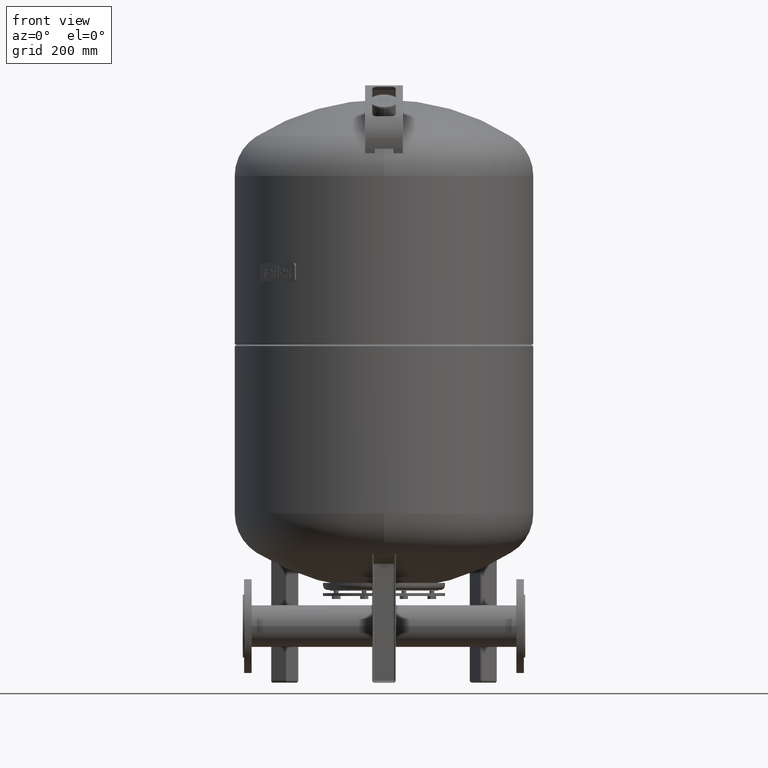
[diagram: clean part render]
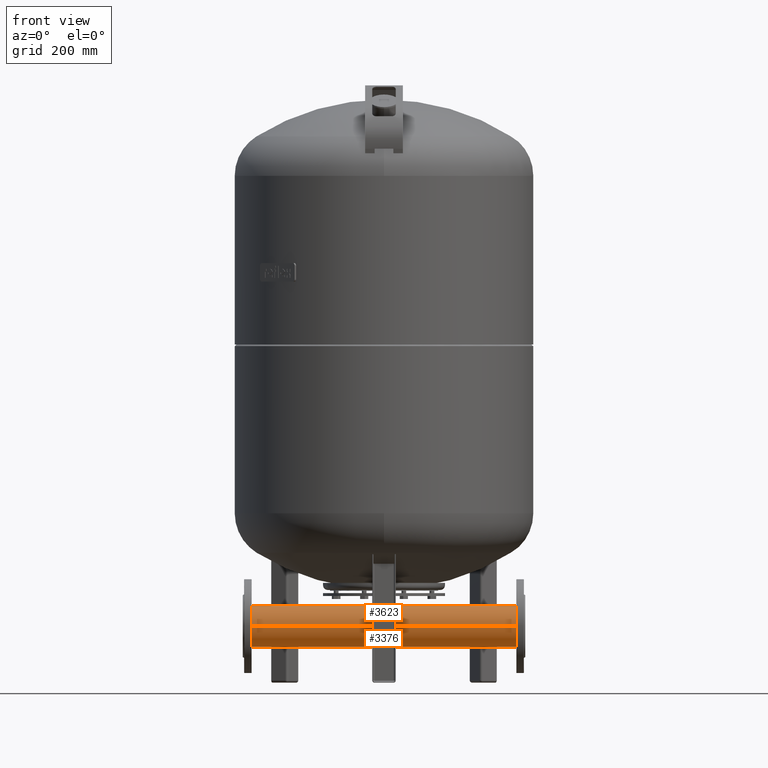
[diagram: same view with one multi-face feature highlighted, each face labeled with its STEP entity id]
A machine part, front view. The highlighted faces form ONE feature: a constant-radius fillet chain: 2 tangent blend faces with common blend radius 44.45 mm. The faces share edges in the B-rep.
Their STEP definitions:
[1] entity #3623 (Cylinder):
#3340=CARTESIAN_POINT('',(-290.0,-44.450000000000003,120.000000000000010));
#3341=VERTEX_POINT('',#3340);
#3342=CARTESIAN_POINT('',(290.0,-44.450000000000003,120.000000000000010));
#3343=VERTEX_POINT('',#3342);
#3344=CARTESIAN_POINT('',(-290.0,-44.450000000000003,120.000000000000010));
#3345=DIRECTION('',(1.0,0.0,0.0));
#3346=VECTOR('',#3345,580.0);
#3347=LINE('',#3344,#3346);
#3348=EDGE_CURVE('',#3341,#3343,#3347,.T.);
#3350=CARTESIAN_POINT('',(-290.0,44.450000000000003,120.000000000000010));
#3351=VERTEX_POINT('',#3350);
#3359=CARTESIAN_POINT('',(290.0,44.450000000000003,120.000000000000010));
#3360=VERTEX_POINT('',#3359);
#3361=CARTESIAN_POINT('',(-290.0,44.450000000000003,120.000000000000010));
#3362=DIRECTION('',(1.0,0.0,0.0));
#3363=VECTOR('',#3362,580.0);
#3364=LINE('',#3361,#3363);
#3365=EDGE_CURVE('',#3351,#3360,#3364,.T.);
#3384=CARTESIAN_POINT('',(21.199999999999999,-2.609024E-015,164.450000000000020));
#3385=VERTEX_POINT('',#3384);
#3401=CARTESIAN_POINT('',(-21.199999999999999,6.429319E-018,164.450000000000020));
#3402=VERTEX_POINT('',#3401);
#3409=CARTESIAN_POINT('',(-9.255268769733188,-19.073017590302840,160.150000000000010));
#3410=VERTEX_POINT('',#3409);
#3411=CARTESIAN_POINT('',(-21.199999999999999,6.429319E-018,164.450000000000020));
#3412=CARTESIAN_POINT('',(-21.199999999999999,-0.676949430575640,164.450000000000020));
#3413=CARTESIAN_POINT('',(-21.167441153364571,-1.363819374060042,164.434441295891250));
#3414=CARTESIAN_POINT('',(-21.033125230235740,-2.743758610999208,164.370613757842390));
#3415=CARTESIAN_POINT('',(-20.931373956715078,-3.436828503930000,164.322345673069610));
#3416=CARTESIAN_POINT('',(-20.657710105999641,-4.815933871447621,164.193765364275180));
#3417=CARTESIAN_POINT('',(-20.485784944487087,-5.502065052499702,164.113449457189120));
#3418=CARTESIAN_POINT('',(-20.073582200570151,-6.855027517860495,163.923544262539620));
#3419=CARTESIAN_POINT('',(-19.833309010748476,-7.521861332932393,163.813963470886110));
#3420=CARTESIAN_POINT('',(-19.016658113098707,-9.476332434212416,163.448346265430270));
#3421=CARTESIAN_POINT('',(-18.342273985098394,-10.719858566093745,163.154404263451740));
#3422=CARTESIAN_POINT('',(-16.793357100909880,-13.012975824006595,162.519177264415280));
#3423=CARTESIAN_POINT('',(-15.918703409469408,-14.062624112840208,162.178393610927740));
#3424=CARTESIAN_POINT('',(-14.060577745397850,-15.920749776911766,161.512748661790540));
#3425=CARTESIAN_POINT('',(-13.009923410229625,-16.795687714215170,161.163302287794290));
#3426=CARTESIAN_POINT('',(-11.039126407685908,-18.126426319528782,160.590669704612370));
#3427=CARTESIAN_POINT('',(-10.165351092310249,-18.631395992768311,160.359789701071830));
#3428=CARTESIAN_POINT('',(-9.255268769733188,-19.073017590302840,160.150000000000010));
#3429=B_SPLINE_CURVE_WITH_KNOTS('',3,(#3411,#3412,#3413,#3414,#3415,#3416,#3417,#3418,#3419,#3420,#3421,#3422,#3423,#3424,#3425,#3426,#3427,#3428),.UNSPECIFIED.,.F.,.U.,(4,2,2,2,2,2,2,2,4),(32.529397532071549,34.560245823798468,36.591094115525394,38.621942407252320,40.652790698979246,44.714487282433097,48.776183865886949,52.846836665450986,55.774488578327329),.UNSPECIFIED.);
#3430=EDGE_CURVE('',#3402,#3410,#3429,.T.);
#3432=CARTESIAN_POINT('',(9.255268769733188,-19.073017590302840,160.150000000000010));
#3433=VERTEX_POINT('',#3432);
#3434=CARTESIAN_POINT('',(-9.255268769733188,-19.073017590302840,160.150000000000010));
#3435=CARTESIAN_POINT('',(-8.899958462148710,-19.245433537479592,160.068094834536710));
#3436=CARTESIAN_POINT('',(-8.539141416050697,-19.408244156430985,159.989391932066780));
#3437=CARTESIAN_POINT('',(-7.522963997265386,-19.832861277534455,159.781299957834900));
#3438=CARTESIAN_POINT('',(-6.856892646496809,-20.072923736784052,159.660229777031300));
#3439=CARTESIAN_POINT('',(-5.505144921250054,-20.484936502306653,159.448998337180430));
#3440=CARTESIAN_POINT('',(-4.819463989948445,-20.656882590118698,159.358858011262810));
#3441=CARTESIAN_POINT('',(-3.440650489217258,-20.930741876675224,159.213907570769040));
#3442=CARTESIAN_POINT('',(-2.747414288529246,-21.032667640938769,159.159101642628630));
#3443=CARTESIAN_POINT('',(-1.366310527992796,-21.167299990967429,159.086490769123690));
#3444=CARTESIAN_POINT('',(-0.678442133260674,-21.199999999999999,159.068689509631640));
#3445=CARTESIAN_POINT('',(0.678442133260674,-21.199999999999999,159.068689509631640));
#3446=CARTESIAN_POINT('',(1.366310527992797,-21.167299990967429,159.086490769123690));
#3447=CARTESIAN_POINT('',(2.747414288529245,-21.032667640938769,159.159101642628630));
#3448=CARTESIAN_POINT('',(3.440650489217255,-20.930741876675235,159.213907570769040));
#3449=CARTESIAN_POINT('',(4.819463989948442,-20.656882590118705,159.358858011262810));
#3450=CARTESIAN_POINT('',(5.505144921250053,-20.484936502306656,159.448998337180430));
#3451=CARTESIAN_POINT('',(6.856892646496812,-20.072923736784052,159.660229777031300));
#3452=CARTESIAN_POINT('',(7.522963997265387,-19.832861277534448,159.781299957834900));
#3453=CARTESIAN_POINT('',(8.539141416050697,-19.408244156430982,159.989391932066780));
#3454=CARTESIAN_POINT('',(8.899958462148712,-19.245433537479592,160.068094834536710));
#3455=CARTESIAN_POINT('',(9.255268769733188,-19.073017590302840,160.150000000000010));
#3456=B_SPLINE_CURVE_WITH_KNOTS('',3,(#3434,#3435,#3436,#3437,#3438,#3439,#3440,#3441,#3442,#3443,#3444,#3445,#3446,#3447,#3448,#3449,#3450,#3451,#3452,#3453,#3454,#3455),.UNSPECIFIED.,.F.,.U.,(4,2,2,2,2,2,2,2,2,2,4),(55.774488578327329,56.917489465015024,58.952815864797046,60.988142264579061,63.023468664361076,65.058795064143098,67.094121463925120,69.129447863707128,71.164774263489150,73.200100663271172,74.343101549958860),.UNSPECIFIED.);
#3457=EDGE_CURVE('',#3410,#3433,#3456,.T.);
#3459=CARTESIAN_POINT('',(9.255268769733188,-19.073017590302840,160.150000000000010));
#3460=CARTESIAN_POINT('',(10.165351092310251,-18.631395992768311,160.359789701071830));
#3461=CARTESIAN_POINT('',(11.039126407685902,-18.126426319528782,160.590669704612400));
#3462=CARTESIAN_POINT('',(13.009923410229620,-16.795687714215170,161.163302287794270));
#3463=CARTESIAN_POINT('',(14.060577745397845,-15.920749776911768,161.512748661790540));
#3464=CARTESIAN_POINT('',(15.918703409469403,-14.062624112840211,162.178393610927740));
#3465=CARTESIAN_POINT('',(16.793357100909873,-13.012975824006597,162.519177264415280));
#3466=CARTESIAN_POINT('',(18.342273985098387,-10.719858566093748,163.154404263451740));
#3467=CARTESIAN_POINT('',(19.016658113098707,-9.476332434212424,163.448346265430270));
#3468=CARTESIAN_POINT('',(19.833309010748476,-7.521861332932405,163.813963470886110));
#3469=CARTESIAN_POINT('',(20.073582200570147,-6.855027517860505,163.923544262539620));
#3470=CARTESIAN_POINT('',(20.485784944487090,-5.502065052499712,164.113449457189120));
#3471=CARTESIAN_POINT('',(20.657710105999641,-4.815933871447632,164.193765364275180));
#3472=CARTESIAN_POINT('',(20.931373956715078,-3.436828503930013,164.322345673069610));
#3473=CARTESIAN_POINT('',(21.033125230235740,-2.743758610999221,164.370613757842390));
#3474=CARTESIAN_POINT('',(21.167441153364571,-1.363819374060054,164.434441295891250));
#3475=CARTESIAN_POINT('',(21.199999999999999,-0.676949430575645,164.450000000000020));
#3476=CARTESIAN_POINT('',(21.199999999999999,-2.609024E-015,164.450000000000020));
#3477=B_SPLINE_CURVE_WITH_KNOTS('',3,(#3459,#3460,#3461,#3462,#3463,#3464,#3465,#3466,#3467,#3468,#3469,#3470,#3471,#3472,#3473,#3474,#3475,#3476),.UNSPECIFIED.,.F.,.U.,(4,2,2,2,2,2,2,2,4),(74.343101549958860,77.270753462835202,81.341406262399232,85.403102845853084,89.464799429306936,91.495647721033862,93.526496012760788,95.557344304487714,97.588192596214640),.UNSPECIFIED.);
#3478=EDGE_CURVE('',#3433,#3385,#3477,.T.);
#3489=CARTESIAN_POINT('',(9.255268769733188,19.073017590302840,160.150000000000010));
#3490=VERTEX_POINT('',#3489);
#3491=CARTESIAN_POINT('',(21.199999999999999,-2.609024E-015,164.450000000000020));
#3492=CARTESIAN_POINT('',(21.199999999999999,0.676949430575639,164.450000000000020));
#3493=CARTESIAN_POINT('',(21.167441153364571,1.363819374060044,164.434441295891250));
#3494=CARTESIAN_POINT('',(21.033125230235740,2.743758610999212,164.370613757842390));
#3495=CARTESIAN_POINT('',(20.931373956715078,3.436828503930004,164.322345673069610));
#3496=CARTESIAN_POINT('',(20.657710105999641,4.815933871447623,164.193765364275210));
#3497=CARTESIAN_POINT('',(20.485784944487090,5.502065052499703,164.113449457189120));
#3498=CARTESIAN_POINT('',(20.073582200570147,6.855027517860497,163.923544262539620));
#3499=CARTESIAN_POINT('',(19.833309010748476,7.521861332932395,163.813963470886110));
#3500=CARTESIAN_POINT('',(19.016658113098707,9.476332434212416,163.448346265430270));
#3501=CARTESIAN_POINT('',(18.342273985098394,10.719858566093745,163.154404263451740));
#3502=CARTESIAN_POINT('',(16.793357100909880,13.012975824006592,162.519177264415280));
#3503=CARTESIAN_POINT('',(15.918703409469408,14.062624112840204,162.178393610927740));
#3504=CARTESIAN_POINT('',(14.060577745397849,15.920749776911762,161.512748661790540));
#3505=CARTESIAN_POINT('',(13.009923410229620,16.795687714215166,161.163302287794290));
#3506=CARTESIAN_POINT('',(11.039126407685902,18.126426319528779,160.590669704612400));
#3507=CARTESIAN_POINT('',(10.165351092310248,18.631395992768311,160.359789701071800));
#3508=CARTESIAN_POINT('',(9.255268769733188,19.073017590302840,160.150000000000010));
#3509=B_SPLINE_CURVE_WITH_KNOTS('',3,(#3491,#3492,#3493,#3494,#3495,#3496,#3497,#3498,#3499,#3500,#3501,#3502,#3503,#3504,#3505,#3506,#3507,#3508),.UNSPECIFIED.,.F.,.U.,(4,2,2,2,2,2,2,2,4),(97.588192596214640,99.619040887941566,101.649889179668490,103.680737471395420,105.711585763122340,109.773282346576200,113.834978930030050,117.905631729594090,120.833283642470420),.UNSPECIFIED.);
#3510=EDGE_CURVE('',#3385,#3490,#3509,.T.);
#3512=CARTESIAN_POINT('',(-9.255268769733188,19.073017590302840,160.150000000000010));
#3513=VERTEX_POINT('',#3512);
#3514=CARTESIAN_POINT('',(9.255268769733188,19.073017590302840,160.150000000000010));
#3515=CARTESIAN_POINT('',(8.899958462148710,19.245433537479592,160.068094834536710));
#3516=CARTESIAN_POINT('',(8.539141416050697,19.408244156430982,159.989391932066780));
#3517=CARTESIAN_POINT('',(7.522963997265384,19.832861277534448,159.781299957834900));
#3518=CARTESIAN_POINT('',(6.856892646496812,20.072923736784048,159.660229777031300));
#3519=CARTESIAN_POINT('',(5.505144921250057,20.484936502306649,159.448998337180430));
#3520=CARTESIAN_POINT('',(4.819463989948449,20.656882590118698,159.358858011262810));
#3521=CARTESIAN_POINT('',(3.440650489217257,20.930741876675224,159.213907570769040));
#3522=CARTESIAN_POINT('',(2.747414288529238,21.032667640938772,159.159101642628630));
#3523=CARTESIAN_POINT('',(1.366310527992786,21.167299990967432,159.086490769123690));
#3524=CARTESIAN_POINT('',(0.678442133260669,21.199999999999999,159.068689509631640));
#3525=CARTESIAN_POINT('',(0.0,21.199999999999999,159.068689509631640));
#3526=CARTESIAN_POINT('',(-0.678442133260673,21.199999999999999,159.068689509631640));
#3527=CARTESIAN_POINT('',(-1.366310527992793,21.167299990967429,159.086490769123690));
#3528=CARTESIAN_POINT('',(-2.747414288529243,21.032667640938769,159.159101642628630));
#3529=CARTESIAN_POINT('',(-3.440650489217256,20.930741876675228,159.213907570769040));
#3530=CARTESIAN_POINT('',(-4.819463989948446,20.656882590118698,159.358858011262810));
#3531=CARTESIAN_POINT('',(-5.505144921250056,20.484936502306653,159.448998337180430));
#3532=CARTESIAN_POINT('',(-6.856892646496811,20.072923736784052,159.660229777031300));
#3533=CARTESIAN_POINT('',(-7.522963997265387,19.832861277534455,159.781299957834900));
#3534=CARTESIAN_POINT('',(-8.539141416050697,19.408244156430989,159.989391932066780));
#3535=CARTESIAN_POINT('',(-8.899958462148710,19.245433537479592,160.068094834536710));
#3536=CARTESIAN_POINT('',(-9.255268769733188,19.073017590302840,160.150000000000010));
#3537=B_SPLINE_CURVE_WITH_KNOTS('',3,(#3514,#3515,#3516,#3517,#3518,#3519,#3520,#3521,#3522,#3523,#3524,#3525,#3526,#3527,#3528,#3529,#3530,#3531,#3532,#3533,#3534,#3535,#3536),.UNSPECIFIED.,.F.,.U.,(4,2,2,2,2,3,2,2,2,2,4),(120.833283642470420,121.976284529158120,124.011610928940140,126.046937328722150,128.082263728504190,130.117590128286200,132.152916528068200,134.188242927850240,136.223569327632250,138.258895727414260,139.401896614101960),.UNSPECIFIED.);
#3538=EDGE_CURVE('',#3490,#3513,#3537,.T.);
#3540=CARTESIAN_POINT('',(-9.255268769733188,19.073017590302840,160.150000000000010));
#3541=CARTESIAN_POINT('',(-10.165351092310251,18.631395992768308,160.359789701071830));
#3542=CARTESIAN_POINT('',(-11.039126407685909,18.126426319528779,160.590669704612370));
#3543=CARTESIAN_POINT('',(-13.009923410229625,16.795687714215170,161.163302287794290));
#3544=CARTESIAN_POINT('',(-14.060577745397850,15.920749776911766,161.512748661790540));
#3545=CARTESIAN_POINT('',(-15.918703409469408,14.062624112840208,162.178393610927740));
#3546=CARTESIAN_POINT('',(-16.793357100909873,13.012975824006597,162.519177264415280));
#3547=CARTESIAN_POINT('',(-18.342273985098387,10.719858566093750,163.154404263451740));
#3548=CARTESIAN_POINT('',(-19.016658113098707,9.476332434212422,163.448346265430270));
#3549=CARTESIAN_POINT('',(-19.833309010748476,7.521861332932403,163.813963470886110));
#3550=CARTESIAN_POINT('',(-20.073582200570147,6.855027517860504,163.923544262539620));
#3551=CARTESIAN_POINT('',(-20.485784944487090,5.502065052499710,164.113449457189120));
#3552=CARTESIAN_POINT('',(-20.657710105999641,4.815933871447630,164.193765364275180));
#3553=CARTESIAN_POINT('',(-20.931373956715078,3.436828503930011,164.322345673069610));
#3554=CARTESIAN_POINT('',(-21.033125230235740,2.743758610999219,164.370613757842390));
#3555=CARTESIAN_POINT('',(-21.167441153364571,1.363819374060052,164.434441295891250));
#3556=CARTESIAN_POINT('',(-21.199999999999999,0.676949430575642,164.450000000000020));
#3557=CARTESIAN_POINT('',(-21.199999999999999,6.429319E-018,164.450000000000020));
#3558=B_SPLINE_CURVE_WITH_KNOTS('',3,(#3540,#3541,#3542,#3543,#3544,#3545,#3546,#3547,#3548,#3549,#3550,#3551,#3552,#3553,#3554,#3555,#3556,#3557),.UNSPECIFIED.,.F.,.U.,(4,2,2,2,2,2,2,2,4),(9.284306485815769,12.211958398692106,16.282611198256141,20.344307781709993,24.406004365163845,26.436852656890771,28.467700948617697,30.498549240344623,32.529397532071549),.UNSPECIFIED.);
#3559=EDGE_CURVE('',#3513,#3402,#3558,.T.);
#3587=CARTESIAN_POINT('',(290.0,0.0,120.000000000000010));
#3588=DIRECTION('',(-1.0,0.0,0.0));
#3589=DIRECTION('',(0.0,-1.0,0.0));
#3590=AXIS2_PLACEMENT_3D('',#3587,#3588,#3589);
#3591=CIRCLE('',#3590,44.450000000000003);
#3592=EDGE_CURVE('',#3343,#3360,#3591,.T.);
#3598=CARTESIAN_POINT('',(-247.500000000000030,0.0,120.000000000000010));
#3599=DIRECTION('',(-1.0,0.0,0.0));
#3600=DIRECTION('',(0.0,-1.0,0.0));
#3601=AXIS2_PLACEMENT_3D('',#3598,#3599,#3600);
#3602=CYLINDRICAL_SURFACE('',#3601,44.450000000000003);
#3603=ORIENTED_EDGE('',*,*,#3348,.T.);
#3604=ORIENTED_EDGE('',*,*,#3592,.T.);
#3605=ORIENTED_EDGE('',*,*,#3365,.F.);
#3606=CARTESIAN_POINT('',(-290.0,0.0,120.000000000000010));
#3607=DIRECTION('',(-1.0,0.0,0.0));
#3608=DIRECTION('',(0.0,-1.0,0.0));
#3609=AXIS2_PLACEMENT_3D('',#3606,#3607,#3608);
#3610=CIRCLE('',#3609,44.450000000000003);
#3611=EDGE_CURVE('',#3341,#3351,#3610,.T.);
#3612=ORIENTED_EDGE('',*,*,#3611,.F.);
#3613=EDGE_LOOP('',(#3603,#3604,#3605,#3612));
#3614=FACE_OUTER_BOUND('',#3613,.T.);
#3615=ORIENTED_EDGE('',*,*,#3559,.F.);
#3616=ORIENTED_EDGE('',*,*,#3538,.F.);
#3617=ORIENTED_EDGE('',*,*,#3510,.F.);
#3618=ORIENTED_EDGE('',*,*,#3478,.F.);
#3619=ORIENTED_EDGE('',*,*,#3457,.F.);
#3620=ORIENTED_EDGE('',*,*,#3430,.F.);
#3621=EDGE_LOOP('',(#3615,#3616,#3617,#3618,#3619,#3620));
#3622=FACE_BOUND('',#3621,.T.);
#3623=ADVANCED_FACE('',(#3614,#3622),#3602,.T.);
[2] entity #3376 (Cylinder):
#3335=CARTESIAN_POINT('',(-247.500000000000030,0.0,120.000000000000010));
#3336=DIRECTION('',(-1.0,0.0,0.0));
#3337=DIRECTION('',(0.0,-1.0,0.0));
#3338=AXIS2_PLACEMENT_3D('',#3335,#3336,#3337);
#3339=CYLINDRICAL_SURFACE('',#3338,44.450000000000003);
#3340=CARTESIAN_POINT('',(-290.0,-44.450000000000003,120.000000000000010));
#3341=VERTEX_POINT('',#3340);
#3342=CARTESIAN_POINT('',(290.0,-44.450000000000003,120.000000000000010));
#3343=VERTEX_POINT('',#3342);
#3344=CARTESIAN_POINT('',(-290.0,-44.450000000000003,120.000000000000010));
#3345=DIRECTION('',(1.0,0.0,0.0));
#3346=VECTOR('',#3345,580.0);
#3347=LINE('',#3344,#3346);
#3348=EDGE_CURVE('',#3341,#3343,#3347,.T.);
#3349=ORIENTED_EDGE('',*,*,#3348,.F.);
#3350=CARTESIAN_POINT('',(-290.0,44.450000000000003,120.000000000000010));
#3351=VERTEX_POINT('',#3350);
#3352=CARTESIAN_POINT('',(-290.0,0.0,120.000000000000010));
#3353=DIRECTION('',(-1.0,0.0,0.0));
#3354=DIRECTION('',(0.0,-1.0,0.0));
#3355=AXIS2_PLACEMENT_3D('',#3352,#3353,#3354);
#3356=CIRCLE('',#3355,44.450000000000003);
#3357=EDGE_CURVE('',#3351,#3341,#3356,.T.);
#3358=ORIENTED_EDGE('',*,*,#3357,.F.);
#3359=CARTESIAN_POINT('',(290.0,44.450000000000003,120.000000000000010));
#3360=VERTEX_POINT('',#3359);
#3361=CARTESIAN_POINT('',(-290.0,44.450000000000003,120.000000000000010));
#3362=DIRECTION('',(1.0,0.0,0.0));
#3363=VECTOR('',#3362,580.0);
#3364=LINE('',#3361,#3363);
#3365=EDGE_CURVE('',#3351,#3360,#3364,.T.);
#3366=ORIENTED_EDGE('',*,*,#3365,.T.);
#3367=CARTESIAN_POINT('',(290.0,0.0,120.000000000000010));
#3368=DIRECTION('',(-1.0,0.0,0.0));
#3369=DIRECTION('',(0.0,-1.0,0.0));
#3370=AXIS2_PLACEMENT_3D('',#3367,#3368,#3369);
#3371=CIRCLE('',#3370,44.450000000000003);
#3372=EDGE_CURVE('',#3360,#3343,#3371,.T.);
#3373=ORIENTED_EDGE('',*,*,#3372,.T.);
#3374=EDGE_LOOP('',(#3349,#3358,#3366,#3373));
#3375=FACE_OUTER_BOUND('',#3374,.T.);
#3376=ADVANCED_FACE('',(#3375),#3339,.T.);